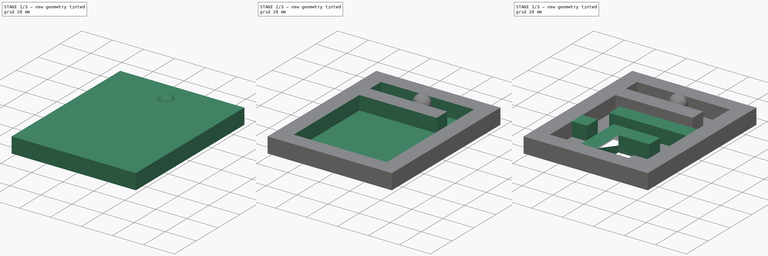
[diagram: build sequence overview — one tinted view per stage of 3, left to right]
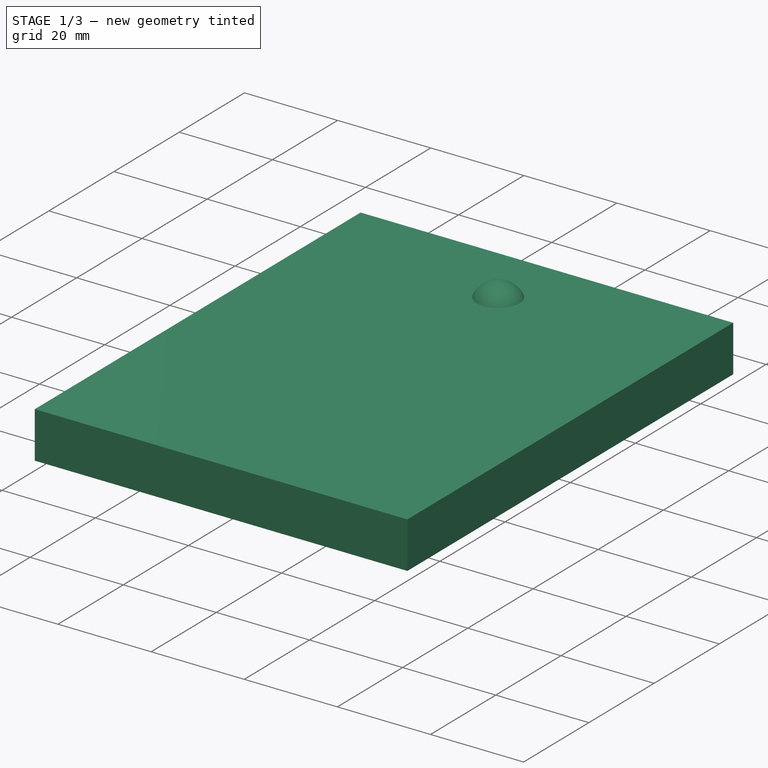
[diagram: stage 1 of 3 — iso view after this stage's code; geometry added in this stage tinted green]
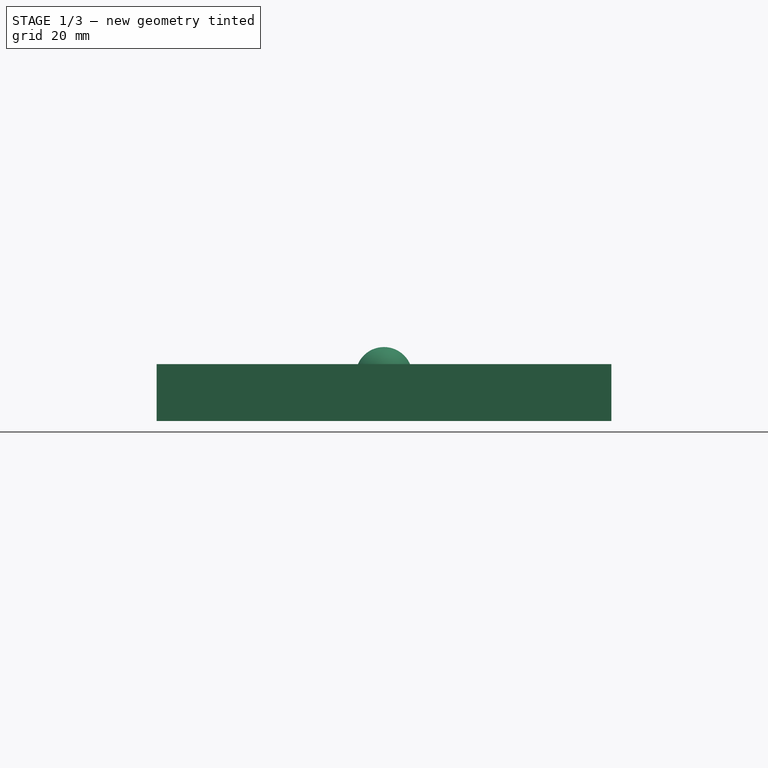
[diagram: stage 1 of 3 — front view after this stage's code; geometry added in this stage tinted green]
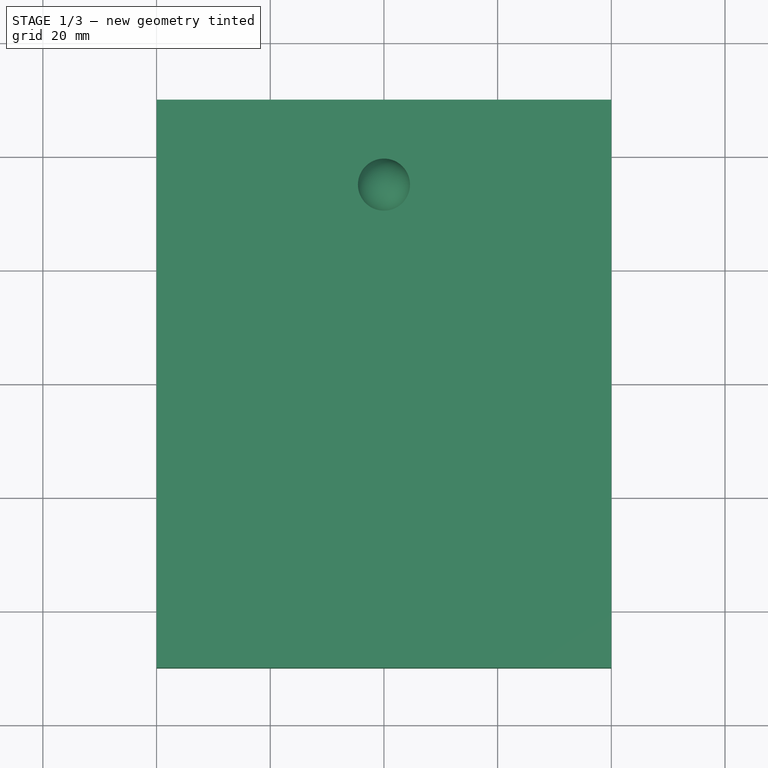
[diagram: stage 1 of 3 — top view after this stage's code; geometry added in this stage tinted green]
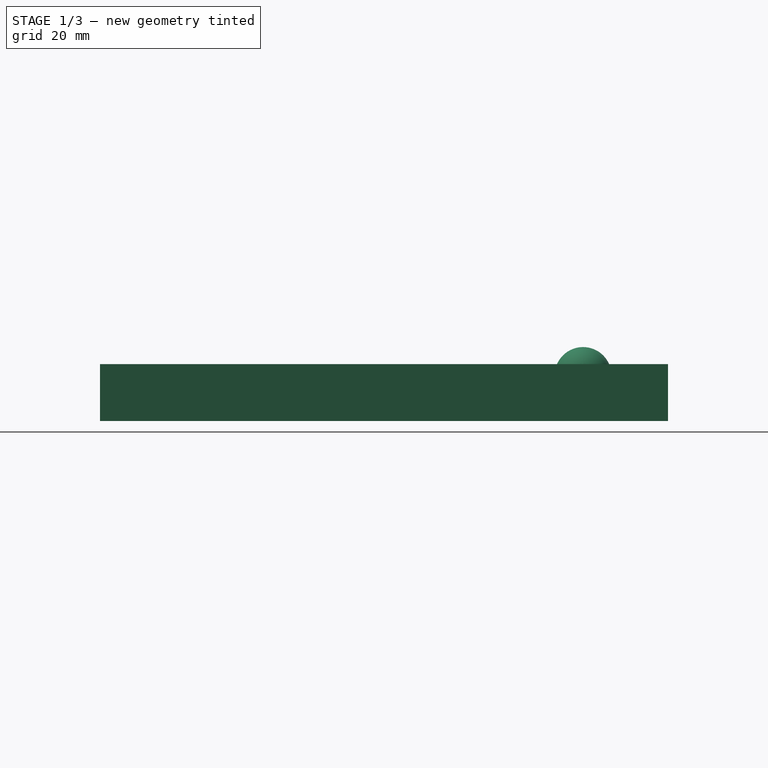
[diagram: stage 1 of 3 — right view after this stage's code; geometry added in this stage tinted green]
FCSTD DOCUMENT  (FreeCAD 0.21R33694 (Git))
Label: OJT1_T17R03.canica
License: All rights reserved
LicenseURL: http://en.wikipedia.org/wiki/All_rights_reserved
objects: Sketcher::SketchObject×5, PartDesign::Pad×3, PartDesign::Pocket×2, PartDesign::Body×1, Part::Sphere×1
note: 17 computed .brp shape members not serialized (recipe doc carries the construction recipe); baked Part::Feature solids carry a one-line shape summary decoded from their .brp

FEATURE [Sketcher::SketchObject] Sketch
  FullyConstrained = false
  MapMode = 5
  Support = -> [XY_Plane]
  sketch-geometry (4):
    g0: LineSegment StartX=-39.9993 StartY=49.942 StartZ=0 EndX=40.0141 EndY=49.942 EndZ=0
    g1: LineSegment StartX=40.0141 StartY=49.942 StartZ=0 EndX=40.0141 EndY=-49.9843 EndZ=0
    g2: LineSegment StartX=40.0141 StartY=-49.9843 StartZ=0 EndX=-39.9993 EndY=-49.9843 EndZ=0
    g3: LineSegment StartX=-39.9993 StartY=-49.9843 StartZ=0 EndX=-39.9993 EndY=49.942 EndZ=0
  constraints (8):
    c: Coincident(g0,g1)
    c: Coincident(g1,g2)
    c: Coincident(g2,g3)
    c: Coincident(g3,g0)
    c: Horizontal(g0)
    c: Horizontal(g2)
    c: Vertical(g1)
    c: Vertical(g3)
FEATURE [PartDesign::Pad] Pad
  Direction = (0,0,1)
  Length = 10
  Length2 = 10
  Profile = -> Sketch
  ReferenceAxis = -> Sketch [N_Axis]
  Refine = true
  Type = 0
FEATURE [PartDesign::Body] Body
  Group = -> [Sketch,Pad,Sketch001,Pocket,Sketch002,Pad001,Sketch003,Pad002,Sketch004,Pocket001]
  Origin = -> Origin
  Tip = -> Pocket001
FEATURE [Part::Sphere] Sphere  label="Esfera"
  Angle1 = -90
  Angle2 = 90
  Angle3 = 360
  AttacherType = Attacher::AttachEngine3D
  Placement = pos=(0,35,8) rot=(0,0,1;0rad)
  Radius = 5
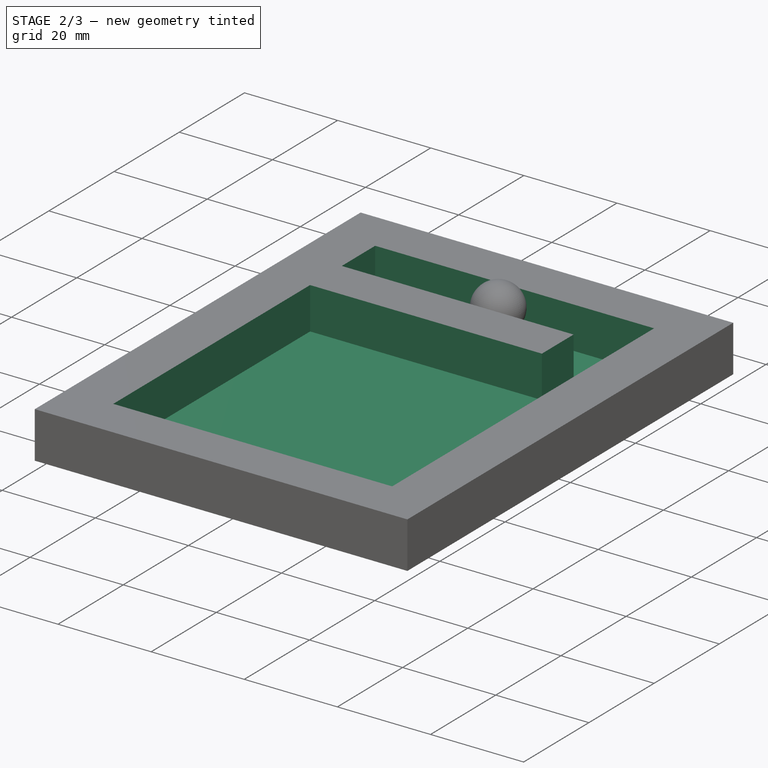
[diagram: stage 2 of 3 — iso view after this stage's code; geometry added in this stage tinted green]
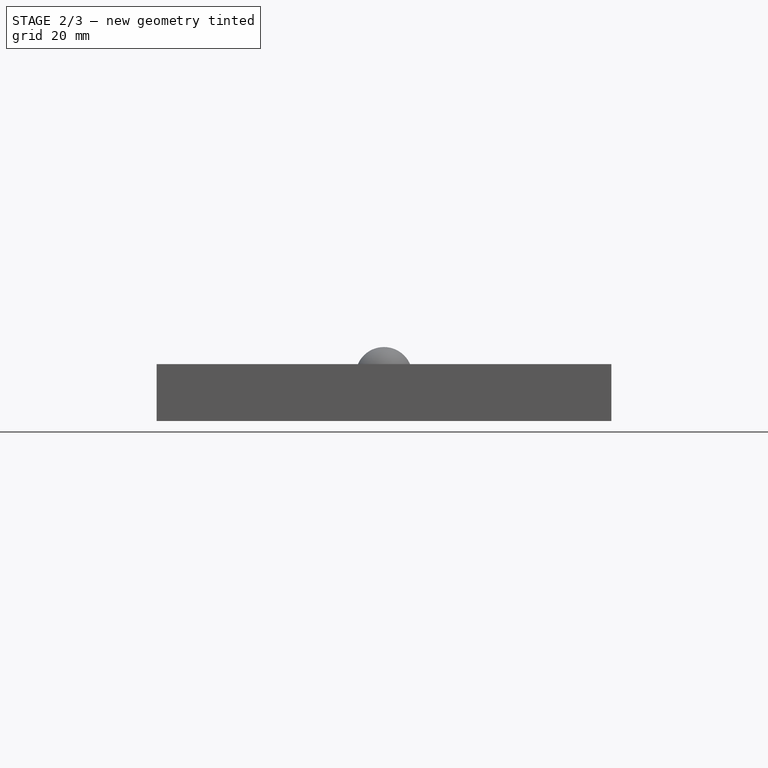
[diagram: stage 2 of 3 — front view after this stage's code; geometry added in this stage tinted green]
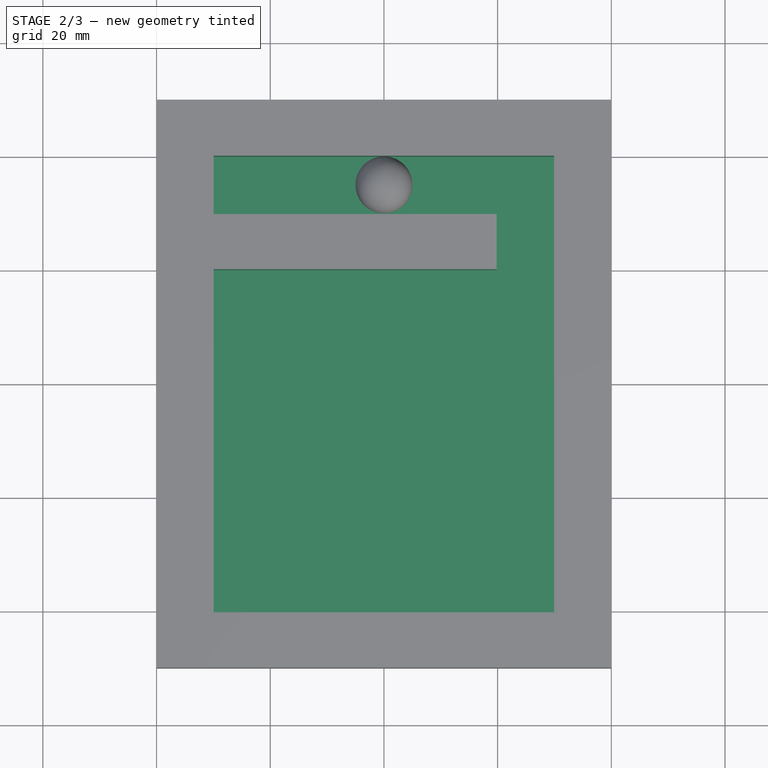
[diagram: stage 2 of 3 — top view after this stage's code; geometry added in this stage tinted green]
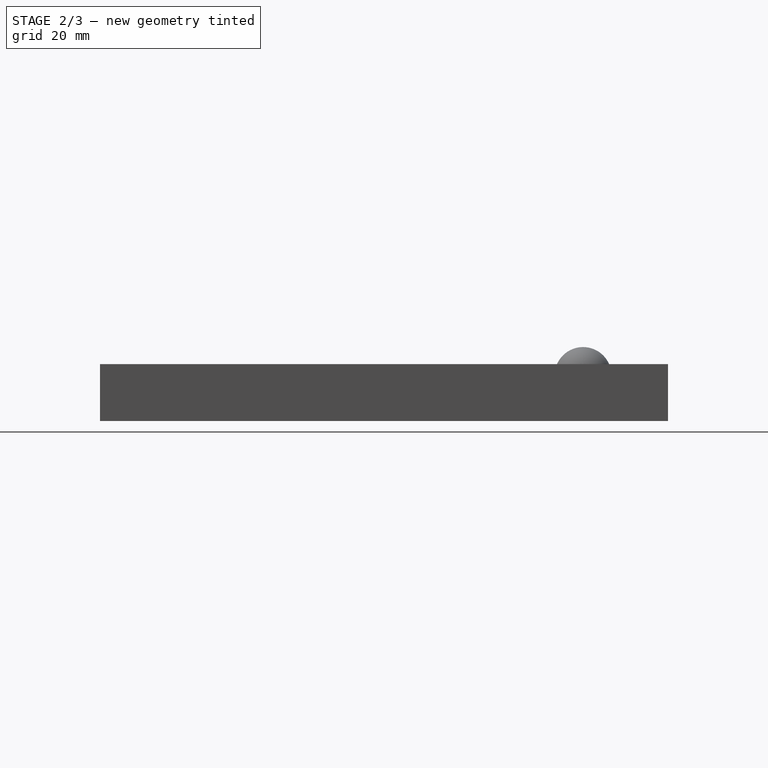
[diagram: stage 2 of 3 — right view after this stage's code; geometry added in this stage tinted green]
FEATURE [Sketcher::SketchObject] Sketch001
  FullyConstrained = false
  MapMode = 5
  Placement = pos=(0,0,10) rot=(0,0,1;0rad)
  Support = -> [Pad]
  sketch-geometry (4):
    g0: LineSegment StartX=-29.9606 StartY=40.0679 StartZ=0 EndX=29.9332 EndY=40.0679 EndZ=0
    g1: LineSegment StartX=29.9332 StartY=40.0679 StartZ=0 EndX=29.9332 EndY=-40.2499 EndZ=0
    g2: LineSegment StartX=29.9332 StartY=-40.2499 StartZ=0 EndX=-29.9606 EndY=-40.2499 EndZ=0
    g3: LineSegment StartX=-29.9606 StartY=-40.2499 StartZ=0 EndX=-29.9606 EndY=40.0679 EndZ=0
  constraints (8):
    c: Coincident(g0,g1)
    c: Coincident(g1,g2)
    c: Coincident(g2,g3)
    c: Coincident(g3,g0)
    c: Horizontal(g0)
    c: Horizontal(g2)
    c: Vertical(g1)
    c: Vertical(g3)
FEATURE [PartDesign::Pocket] Pocket
  BaseFeature = -> Pad
  Direction = (0,0,-1)
  Length = 9
  Length2 = 5
  Profile = -> Sketch001
  ReferenceAxis = -> Sketch001 [N_Axis]
  Refine = true
  Type = 0
FEATURE [Sketcher::SketchObject] Sketch002
  FullyConstrained = false
  MapMode = 5
  Placement = pos=(0,0,1) rot=(0,0,1;0rad)
  Support = -> [Pocket]
  sketch-geometry (4):
    g0: LineSegment StartX=19.8187 StartY=29.8284 StartZ=0 EndX=-30.9143 EndY=29.8284 EndZ=0
    g1: LineSegment StartX=-30.9143 StartY=29.8284 StartZ=0 EndX=-30.9143 EndY=20.107 EndZ=0
    g2: LineSegment StartX=-30.9143 StartY=20.107 StartZ=0 EndX=19.8187 EndY=20.107 EndZ=0
    g3: LineSegment StartX=19.8187 StartY=20.107 StartZ=0 EndX=19.8187 EndY=29.8284 EndZ=0
  constraints (8):
    c: Coincident(g0,g1)
    c: Coincident(g1,g2)
    c: Coincident(g2,g3)
    c: Coincident(g3,g0)
    c: Horizontal(g0)
    c: Horizontal(g2)
    c: Vertical(g1)
    c: Vertical(g3)
FEATURE [PartDesign::Pad] Pad001
  BaseFeature = -> Pocket
  Direction = (0,0,1)
  Length = 9
  Length2 = 10
  Profile = -> Sketch002
  ReferenceAxis = -> Sketch002 [N_Axis]
  Refine = true
  Type = 0
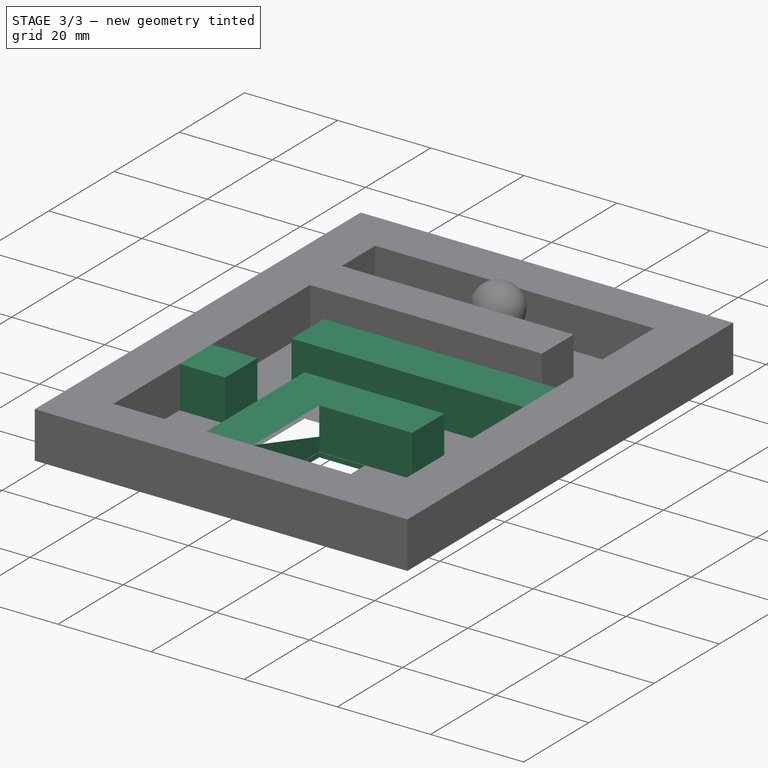
[diagram: stage 3 of 3 — iso view after this stage's code; geometry added in this stage tinted green]
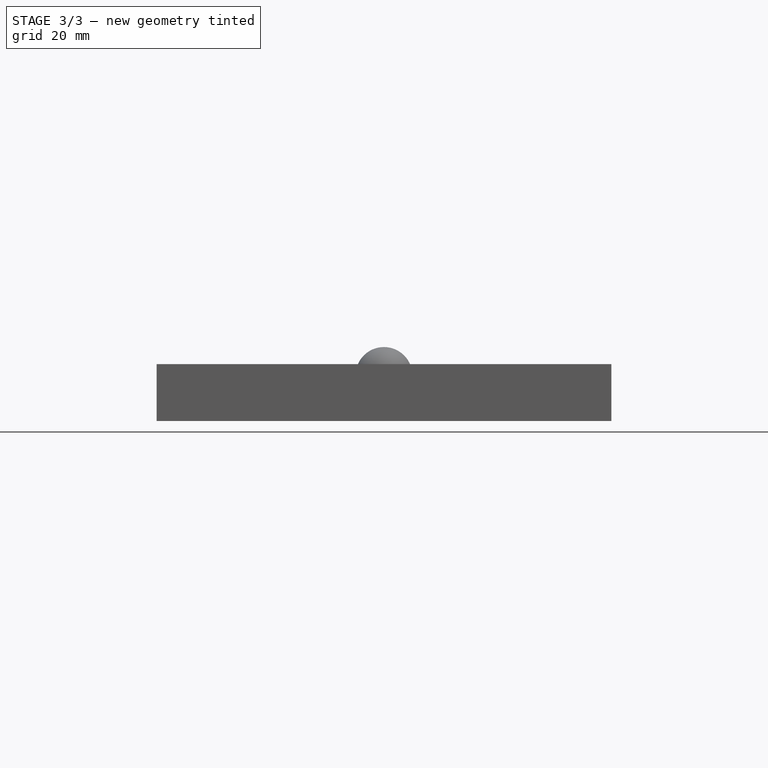
[diagram: stage 3 of 3 — front view after this stage's code; geometry added in this stage tinted green]
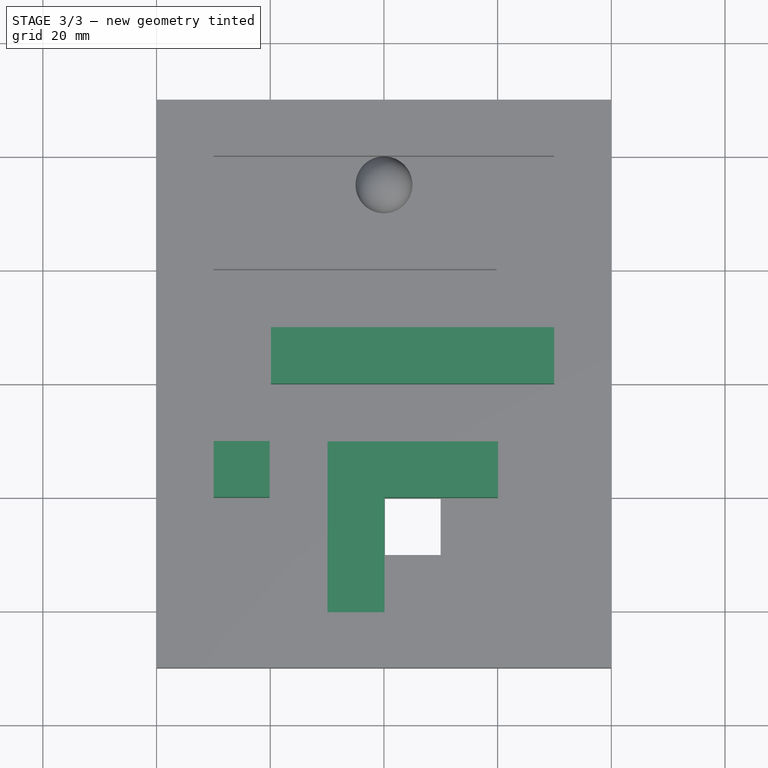
[diagram: stage 3 of 3 — top view after this stage's code; geometry added in this stage tinted green]
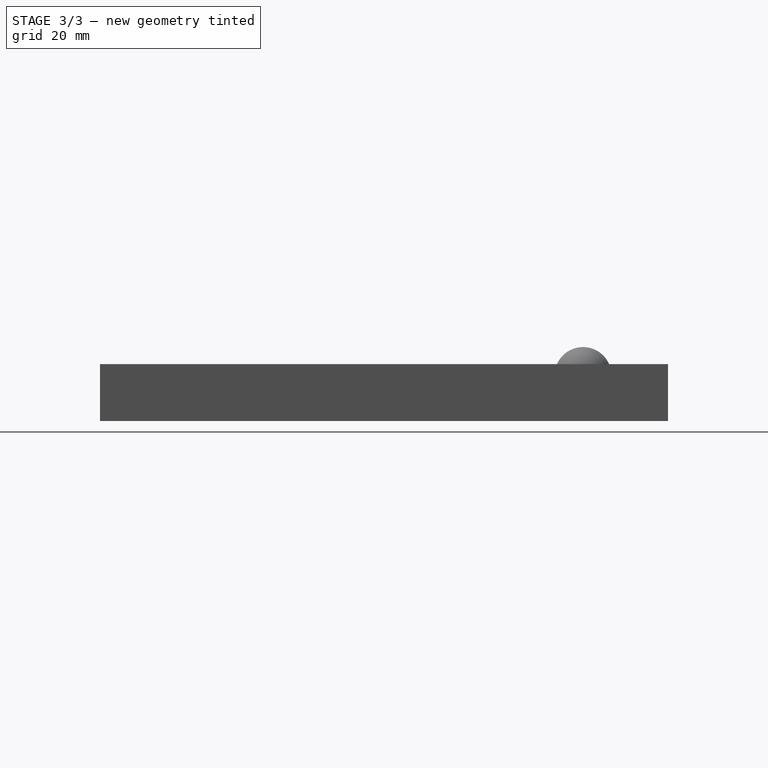
[diagram: stage 3 of 3 — right view after this stage's code; geometry added in this stage tinted green]
FEATURE [Sketcher::SketchObject] Sketch003
  FullyConstrained = false
  MapMode = 5
  Placement = pos=(0,0,1) rot=(0,0,1;0rad)
  Support = -> [Pad001]
  sketch-geometry (16):
    g0: LineSegment StartX=-19.8621 StartY=9.93225 StartZ=0 EndX=33.5526 EndY=9.93225 EndZ=0
    g1: LineSegment StartX=33.5526 StartY=9.93225 StartZ=0 EndX=33.5526 EndY=0 EndZ=0
    g2: LineSegment StartX=33.5526 StartY=0 StartZ=0 EndX=-19.8621 EndY=0 EndZ=0
    g3: LineSegment StartX=-19.8621 StartY=0 StartZ=0 EndX=-19.8621 EndY=9.93225 EndZ=0
    g4: LineSegment StartX=-20.1089 StartY=-10.1196 StartZ=0 EndX=-32.5838 EndY=-10.1196 EndZ=0
    g5: LineSegment StartX=-32.5838 StartY=-10.1196 StartZ=0 EndX=-32.5838 EndY=-19.9549 EndZ=0
    g6: LineSegment StartX=-32.5838 StartY=-19.9549 StartZ=0 EndX=-20.1089 EndY=-19.9549 EndZ=0
    g7: LineSegment StartX=-20.1089 StartY=-19.9549 StartZ=0 EndX=-20.1089 EndY=-10.1196 EndZ=0
    g8: LineSegment StartX=-9.93658 StartY=-10.1755 StartZ=0 EndX=0.086157 EndY=-10.1755 EndZ=0
    g9: LineSegment StartX=0.086157 StartY=-10.1755 StartZ=0 EndX=0.086157 EndY=-41.3967 EndZ=0
    g10: LineSegment StartX=0.086157 StartY=-41.3967 StartZ=0 EndX=-9.93658 EndY=-41.3967 EndZ=0
    g11: LineSegment StartX=-9.93658 StartY=-41.3967 StartZ=0 EndX=-9.93658 EndY=-10.1755 EndZ=0
    g12: LineSegment StartX=0.086157 StartY=-10.1755 StartZ=0 EndX=20.0559 EndY=-10.1755 EndZ=0
    g13: LineSegment StartX=20.0559 StartY=-10.1755 StartZ=0 EndX=20.0559 EndY=-20.0084 EndZ=0
    g14: LineSegment StartX=20.0559 StartY=-20.0084 StartZ=0 EndX=0.086157 EndY=-20.0084 EndZ=0
    g15: LineSegment StartX=0.086157 StartY=-20.0084 StartZ=0 EndX=0.086157 EndY=-10.1755 EndZ=0
  constraints (34):
    c: Coincident(g0,g1)
    c: Coincident(g1,g2)
    c: Coincident(g2,g3)
    c: Coincident(g3,g0)
    c: Horizontal(g0)
    c: Horizontal(g2)
    c: Vertical(g1)
    c: Vertical(g3)
    c: PointOnObject(g1,g-1)
    c: Coincident(g4,g5)
    c: Coincident(g5,g6)
    c: Coincident(g6,g7)
    c: Coincident(g7,g4)
    c: Horizontal(g4)
    c: Horizontal(g6)
    c: Vertical(g5)
    c: Vertical(g7)
    c: Coincident(g8,g9)
    c: Coincident(g9,g10)
    c: Coincident(g10,g11)
    c: Coincident(g11,g8)
    c: Horizontal(g8)
    c: Horizontal(g10)
    c: Vertical(g9)
    c: Vertical(g11)
    c: Coincident(g12,g13)
    c: Coincident(g13,g14)
    c: Coincident(g14,g15)
    c: Coincident(g15,g12)
    c: Horizontal(g12)
    c: Horizontal(g14)
    c: Vertical(g13)
    c: Vertical(g15)
    c: Coincident(g12,g8)
FEATURE [PartDesign::Pad] Pad002
  BaseFeature = -> Pad001
  Direction = (0,0,1)
  Length = 9
  Length2 = 10
  Profile = -> Sketch003
  ReferenceAxis = -> Sketch003 [N_Axis]
  Refine = true
  Type = 0
FEATURE [Sketcher::SketchObject] Sketch004
  FullyConstrained = false
  MapMode = 5
  Placement = pos=(0,0,1) rot=(0,0,1;0rad)
  Support = -> [Pad002]
  sketch-geometry (4):
    g0: LineSegment StartX=9.95863 StartY=-30.0208 StartZ=0 EndX=0.173593 EndY=-30.0208 EndZ=0
    g1: LineSegment StartX=0.173593 StartY=-30.0208 StartZ=0 EndX=0.173593 EndY=-20.1251 EndZ=0
    g2: LineSegment StartX=0.173593 StartY=-20.1251 StartZ=0 EndX=9.95863 EndY=-20.1251 EndZ=0
    g3: LineSegment StartX=9.95863 StartY=-20.1251 StartZ=0 EndX=9.95863 EndY=-30.0208 EndZ=0
  constraints (8):
    c: Coincident(g0,g1)
    c: Coincident(g1,g2)
    c: Coincident(g2,g3)
    c: Coincident(g3,g0)
    c: Horizontal(g0)
    c: Horizontal(g2)
    c: Vertical(g1)
    c: Vertical(g3)
FEATURE [PartDesign::Pocket] Pocket001
  BaseFeature = -> Pad002
  Direction = (0,0,-1)
  Length = 5
  Length2 = 5
  Profile = -> Sketch004
  ReferenceAxis = -> Sketch004 [N_Axis]
  Refine = true
  Type = 0
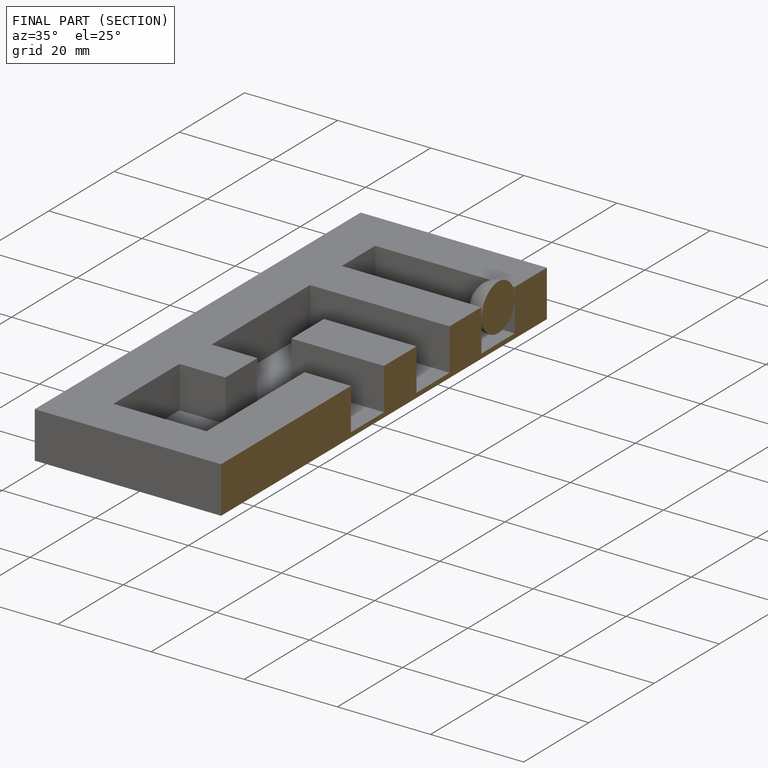
[diagram: finished part — half-section view (interior)]
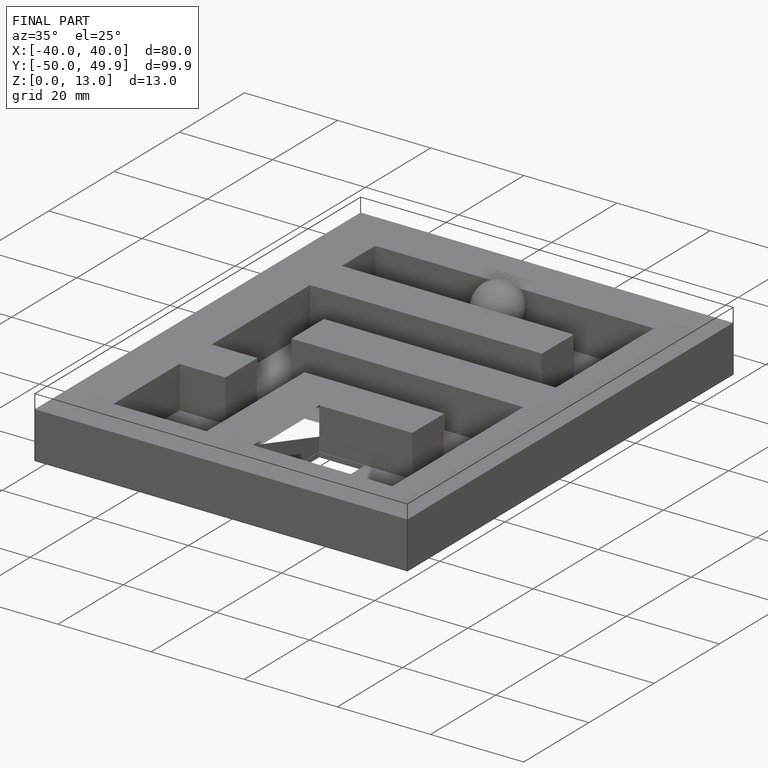
[diagram: finished part — iso view with bounding-box wireframe]
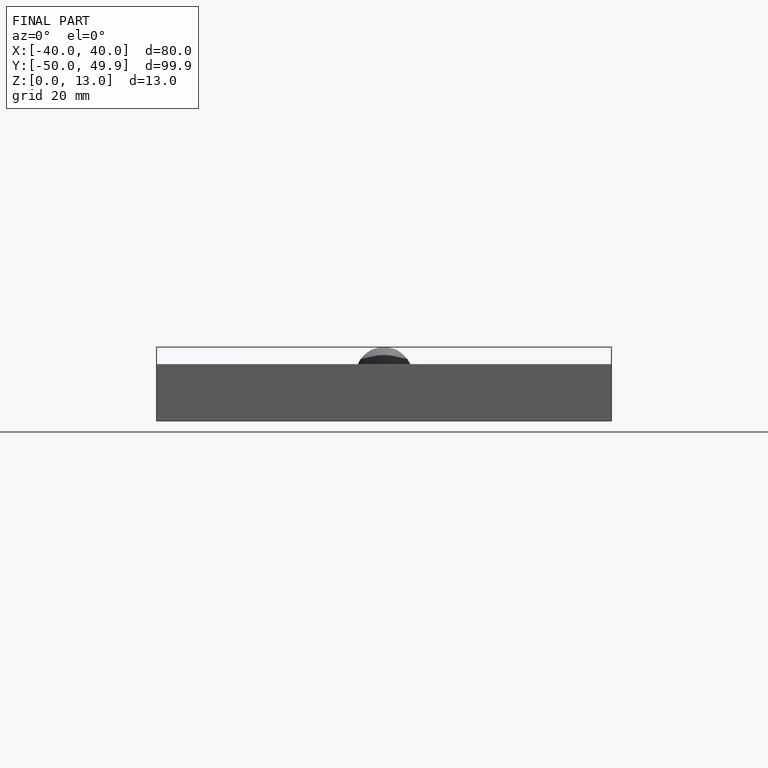
[diagram: finished part — front view with bounding-box wireframe]
